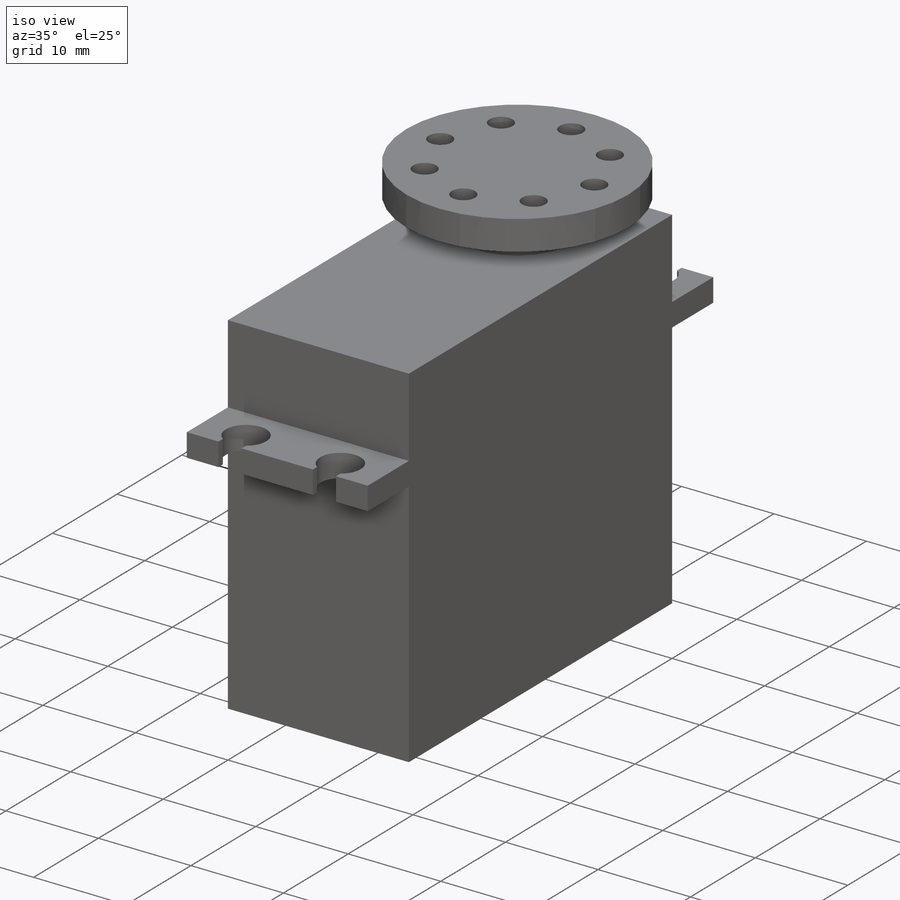
[diagram: iso view]
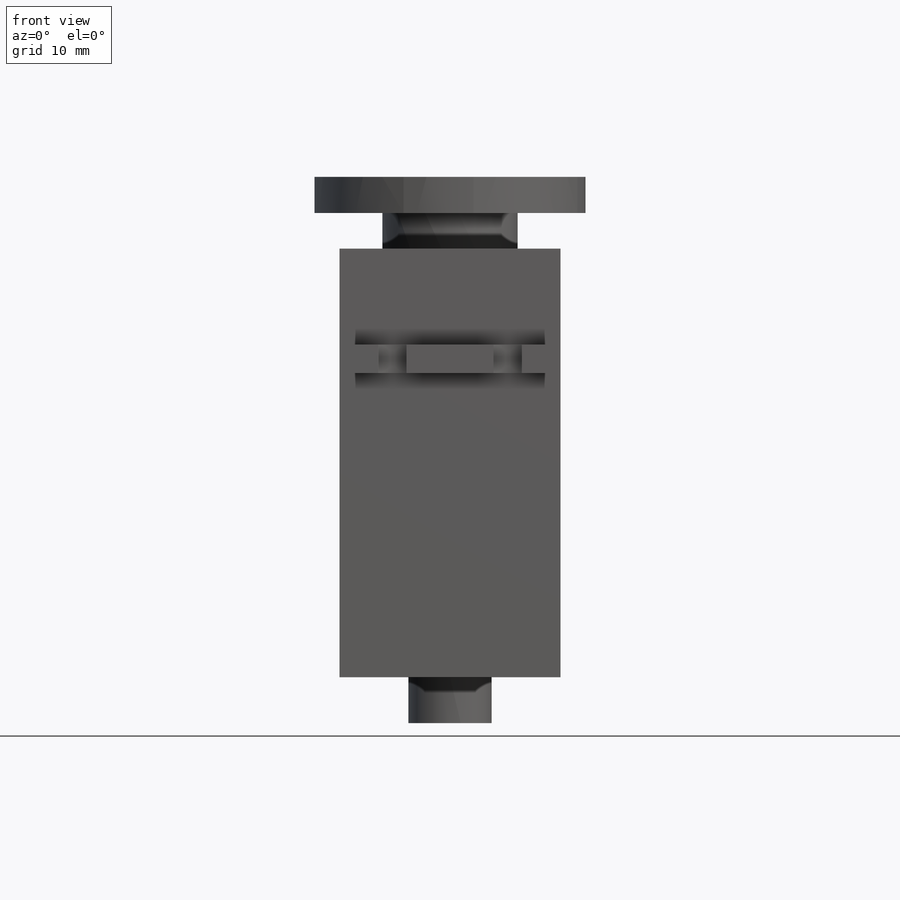
[diagram: front view]
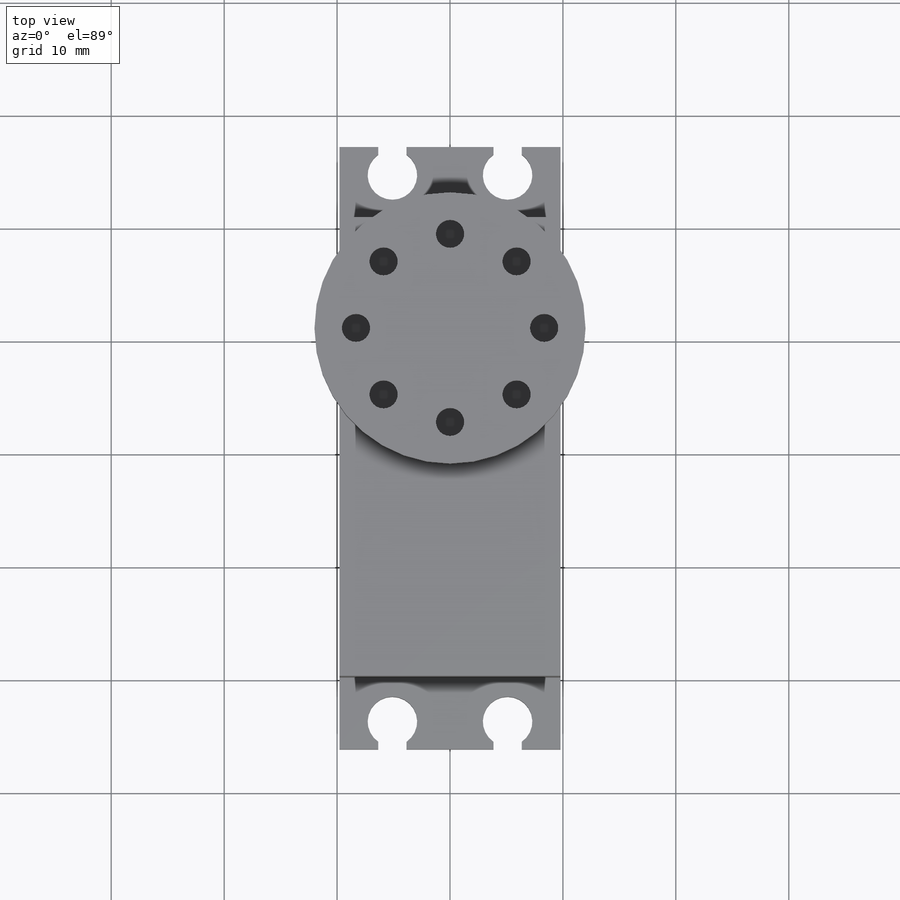
[diagram: top view]
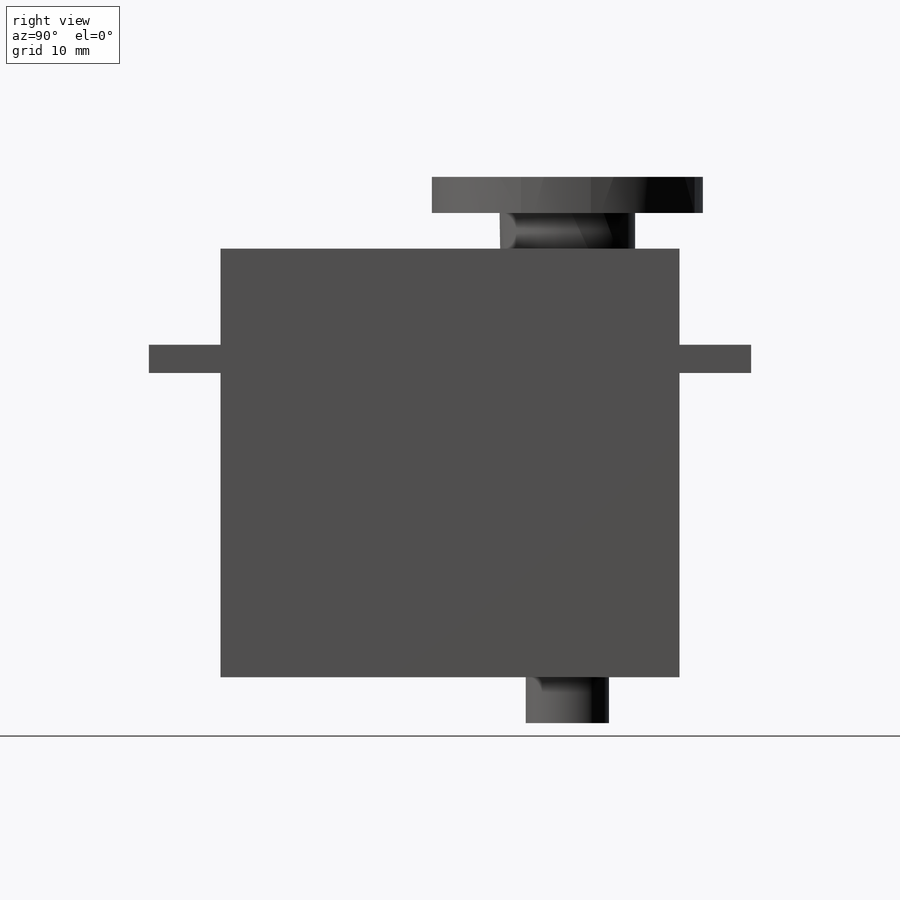
[diagram: right view]
SOLIDWORKS PART (.sldprt)
format: sldprt  version: not decoded by parser v0  size: 240,128 bytes
history: native  units: mm
features: sketch x8, extrude x5, cut_extrude x3, material x1 (+12 scaffold rows collapsed)
feature tree (29):
  scaffold x12  (default folders/planes/origin — collapsed)
  material  "Material <not specified>"
  sketch  "Sketch1"  dims[D1=19.56mm D2=40.64mm]
  extrude  "Boss-Extrude1"  Depth=37.96mm
  sketch  "Sketch2"  dims[D1=26.94mm D2=29.44mm D3=53.34mm]
  extrude  "Boss-Extrude2"  [1 undecoded]
  sketch  "Sketch3"  dims[D1=4.39mm D2=10.2mm D3=48.4mm]
  cut_extrude  "Cut-Extrude1"  [1 undecoded]
  sketch  "Sketch4"  dims[D1=2.5mm]
  cut_extrude  "Cut-Extrude2"  [1 undecoded]
  sketch  "Sketch5"  dims[D1=12.0mm D2=13.81mm]
  extrude  "Boss-Extrude3"  Depth=3.15mm
  sketch  "Sketch6"  dims[D1=24.0mm]
  extrude  "Boss-Extrude4"  Depth=3.2mm
  sketch  "Sketch7"  dims[D1=2.5mm D2=8.33mm D3=8.0]
  cut_extrude  "Cut-Extrude3"  [1 undecoded]
  sketch  "Sketch8"  dims[D1=7.37mm]
  extrude  "Boss-Extrude5"  Depth=4.06mm
decode coverage: 12 of 16 modeling features carry decoded parameters
note: 4 parameter values undecoded
summary: no parameter record found for 4 features
note: suppression state not decoded; provenance and decode notes live in map.json
